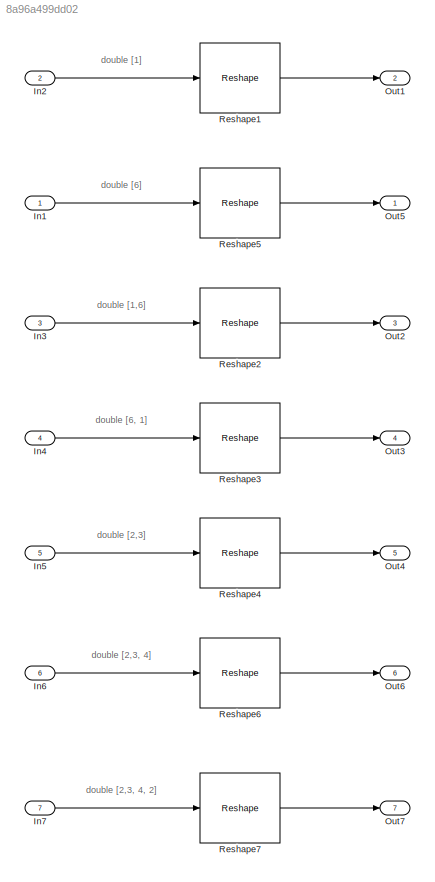
MODEL slx_8a96a499dd02
KIND model
CONFIG AbsTol = auto
CONFIG EnableMultiTasking = on
CONFIG FixedStep = 0.1
CONFIG MaxStep = auto
CONFIG MinStep = auto
CONFIG RelTol = 1e-3
CONFIG SampleTimeConstraint = Unconstrained
CONFIG Solver = FixedStepAuto
CONFIG SolverName = FixedStepAuto
CONFIG StartTime = 0.0
CONFIG StopTime = 10.0
WORKSPACE source: MAT-file member
WORKSPACE A = [0.616044676147 0.473288848903 0.351659507063 0.830828627896 0.585264091153 0.549723608291 0.91719366383 0.28583901882 0.757200229111 0.753729094278 0.380445846975 0.567821640725 ... (48 elements, 2x3x4x2)]
BLOCK [Inport] In1
  IconDisplay = Port number
  PortDimensions = [6]
BLOCK [Inport] In2
  IconDisplay = Port number
  Port = 2
BLOCK [Inport] In3
  IconDisplay = Port number
  Port = 3
  PortDimensions = [1,6]
BLOCK [Inport] In4
  IconDisplay = Port number
  Port = 4
  PortDimensions = [6 1]
BLOCK [Inport] In5
  IconDisplay = Port number
  Port = 5
  PortDimensions = [2 3]
BLOCK [Inport] In6
  IconDisplay = Port number
  Port = 6
  PortDimensions = [2 3 4]
BLOCK [Inport] In7
  IconDisplay = Port number
  Port = 7
  PortDimensions = [2 3 4 2]
BLOCK [Outport] Out1
  IconDisplay = Port number
  Port = 2
BLOCK [Outport] Out2
  IconDisplay = Port number
  Port = 3
BLOCK [Outport] Out3
  IconDisplay = Port number
  Port = 4
BLOCK [Outport] Out4
  IconDisplay = Port number
  Port = 5
BLOCK [Outport] Out5
  IconDisplay = Port number
BLOCK [Outport] Out6
  IconDisplay = Port number
  Port = 6
BLOCK [Outport] Out7
  IconDisplay = Port number
  Port = 7
BLOCK [Reshape] Reshape1
  OutputDimensionality = Column vector (2-D)
  Ports = [1, 1]
BLOCK [Reshape] Reshape2
  OutputDimensionality = Column vector (2-D)
  Ports = [1, 1]
BLOCK [Reshape] Reshape3
  OutputDimensionality = Column vector (2-D)
  Ports = [1, 1]
BLOCK [Reshape] Reshape4
  OutputDimensionality = Column vector (2-D)
  Ports = [1, 1]
BLOCK [Reshape] Reshape5
  OutputDimensionality = Column vector (2-D)
  Ports = [1, 1]
BLOCK [Reshape] Reshape6
  OutputDimensionality = Column vector (2-D)
  Ports = [1, 1]
BLOCK [Reshape] Reshape7
  OutputDimensionality = Column vector (2-D)
  Ports = [1, 1]
ANNOTATION (root): double [1,6]
ANNOTATION (root): double [1]
ANNOTATION (root): double [2,3, 4, 2]
ANNOTATION (root): double [2,3, 4]
ANNOTATION (root): double [2,3]
ANNOTATION (root): double [6, 1]
ANNOTATION (root): double [6]
LINE In1:1 -> Reshape5:1
LINE In2:1 -> Reshape1:1
LINE In3:1 -> Reshape2:1
LINE In4:1 -> Reshape3:1
LINE In5:1 -> Reshape4:1
LINE In6:1 -> Reshape6:1
LINE In7:1 -> Reshape7:1
LINE Reshape1:1 -> Out1:1
LINE Reshape2:1 -> Out2:1
LINE Reshape3:1 -> Out3:1
LINE Reshape4:1 -> Out4:1
LINE Reshape5:1 -> Out5:1
LINE Reshape6:1 -> Out6:1
LINE Reshape7:1 -> Out7:1
